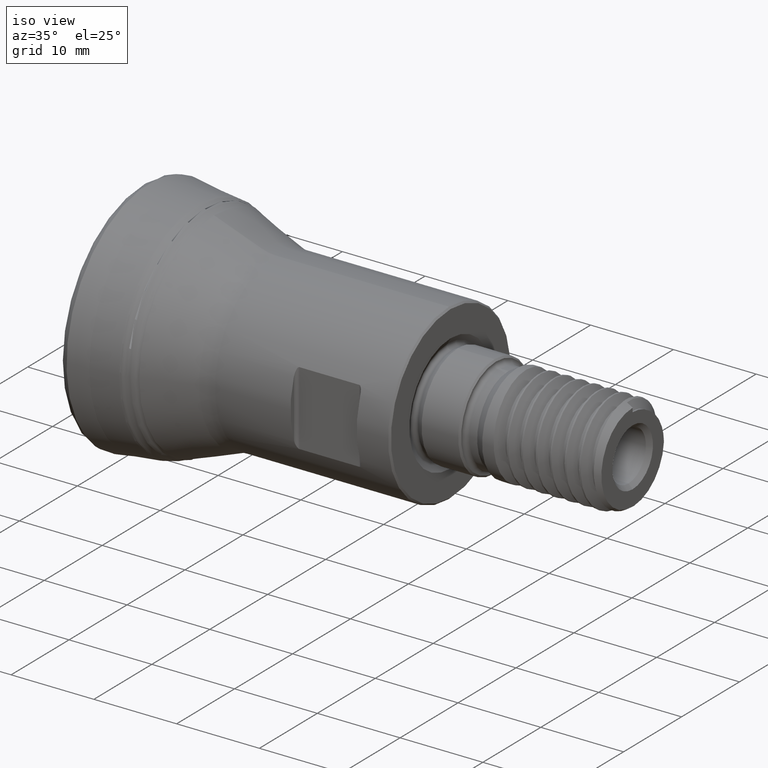
[diagram: clean part render]
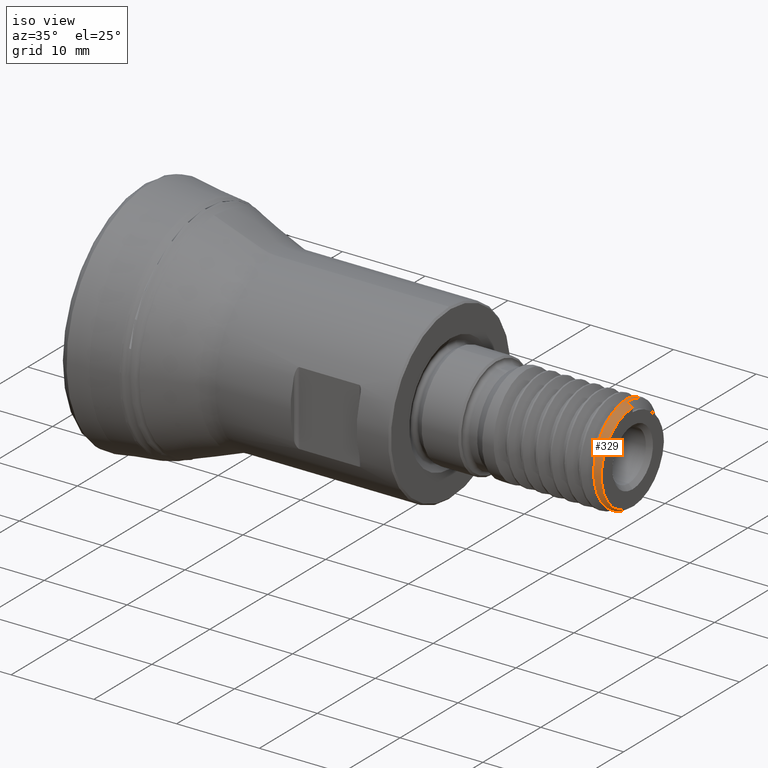
[diagram: same view with one face highlighted and labeled with its STEP entity id]
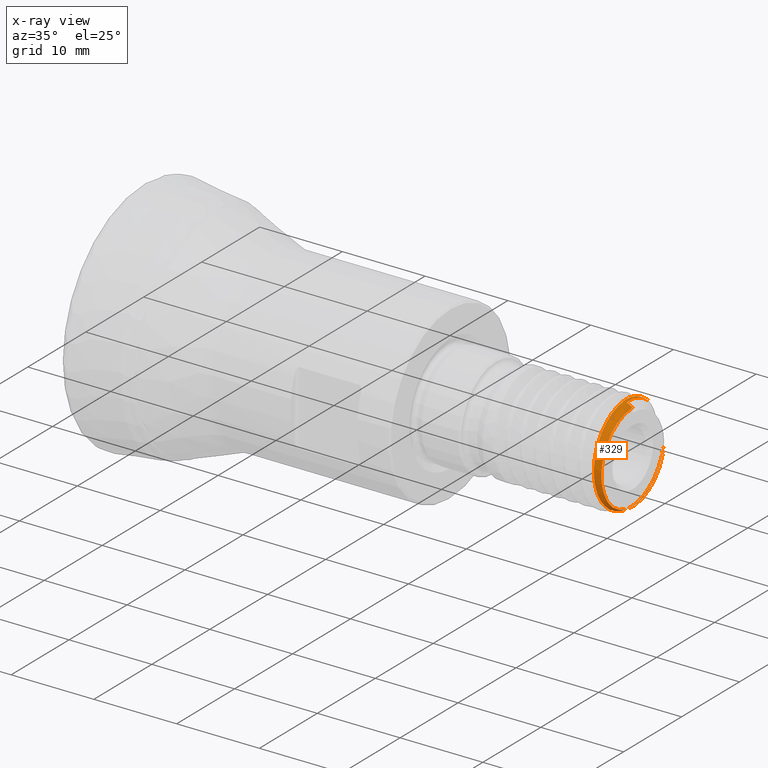
[diagram: x-ray of the same camera — body ghosted, the highlighted face saturated]
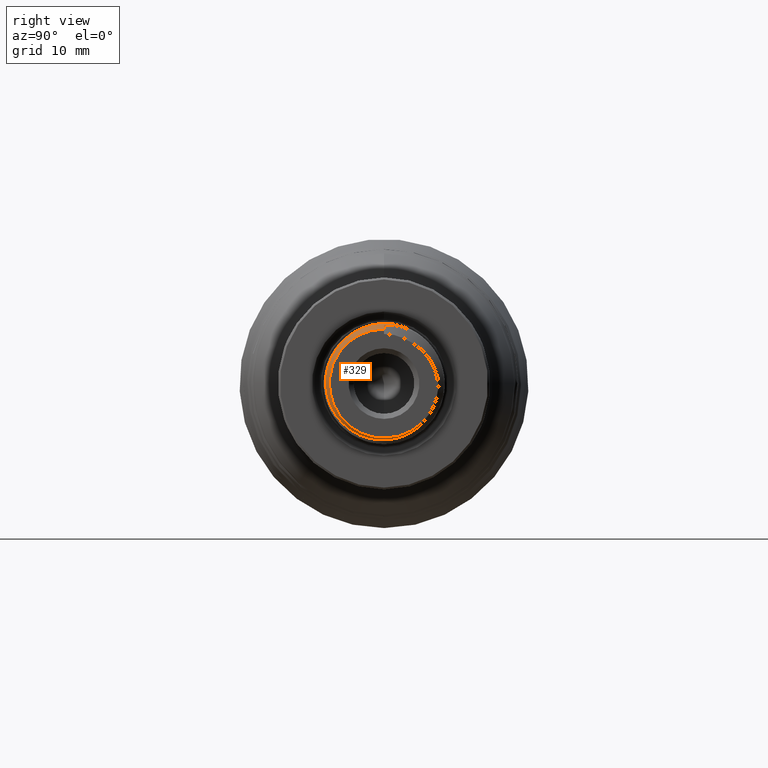
[diagram: same view with one face highlighted and labeled with its STEP entity id]
A machine part, iso view. The second image highlights one B-rep face of the part: STEP entity #329.
The next image is the same camera in x-ray: the body ghosted, the highlighted face saturated — about 0% of this face is hidden behind the body in this view.
A second angle (right view) of the same face is appended — the face is thin or edge-on in the first view.
In plain terms, the highlighted conical surface has half-angle 30 deg.
Its self-contained STEP definition (entity closure, byte-faithful):
#171=FACE_OUTER_BOUND('',#537,.T.);
#219=LINE('',#1983,#241);
#241=VECTOR('',#1282,1.);
#268=B_SPLINE_CURVE_WITH_KNOTS('',3,(#1967,#1968,#1969,#1970,#1971,#1972,
#1973,#1974,#1975,#1976,#1977,#1978,#1979,#1980,#1981,#1982),
 .UNSPECIFIED.,.F.,.F.,(4,2,2,2,2,2,2,4),(0.,0.125,0.25,0.375,0.5,0.625,
0.75,1.),.UNSPECIFIED.);
#269=B_SPLINE_CURVE_WITH_KNOTS('',3,(#1985,#1986,#1987,#1988),
 .UNSPECIFIED.,.F.,.F.,(4,4),(0.,1.),.UNSPECIFIED.);
#308=CONICAL_SURFACE('',#1129,5.983,30.);
#329=ADVANCED_FACE('',(#171),#308,.T.);
#537=EDGE_LOOP('',(#691,#692,#693,#694,#695));
#691=ORIENTED_EDGE('',*,*,#969,.F.);
#692=ORIENTED_EDGE('',*,*,#963,.F.);
#693=ORIENTED_EDGE('',*,*,#970,.F.);
#694=ORIENTED_EDGE('',*,*,#971,.F.);
#695=ORIENTED_EDGE('',*,*,#960,.F.);
#873=VERTEX_POINT('',#1812);
#874=VERTEX_POINT('',#1814);
#875=VERTEX_POINT('',#1947);
#877=VERTEX_POINT('',#1950);
#883=VERTEX_POINT('',#1984);
#960=EDGE_CURVE('',#873,#874,#1044,.T.);
#963=EDGE_CURVE('',#875,#877,#1045,.T.);
#969=EDGE_CURVE('',#877,#873,#268,.T.);
#970=EDGE_CURVE('',#883,#875,#219,.T.);
#971=EDGE_CURVE('',#874,#883,#269,.T.);
#1044=CIRCLE('',#1119,5.983);
#1045=CIRCLE('',#1121,5.40564973081037);
#1119=AXIS2_PLACEMENT_3D('',#1813,#1261,#1262);
#1121=AXIS2_PLACEMENT_3D('',#1949,#1266,#1267);
#1129=AXIS2_PLACEMENT_3D('',#1989,#1283,#1284);
#1261=DIRECTION('',(-1.,0.,0.));
#1262=DIRECTION('',(0.,0.,-1.));
#1266=DIRECTION('',(1.,0.,0.));
#1267=DIRECTION('',(0.,0.,-1.));
#1282=DIRECTION('',(0.866025403784439,0.,-0.499999999999999));
#1283=DIRECTION('',(-1.,0.,0.));
#1284=DIRECTION('',(7.13714880025291E-17,0.,1.));
#1812=CARTESIAN_POINT('',(59.1,0.850381004404823,5.92225811218555));
#1813=CARTESIAN_POINT('',(59.1,0.,0.));
#1814=CARTESIAN_POINT('',(59.1,4.10274933737449,4.35473729112024));
#1947=CARTESIAN_POINT('',(60.1,0.,5.40564973081037));
#1949=CARTESIAN_POINT('',(60.1,0.,0.));
#1950=CARTESIAN_POINT('',(60.1,5.3933927553993,-0.363818083960446));
#1967=CARTESIAN_POINT('',(60.1,5.3933927553993,-0.363818083960446));
#1968=CARTESIAN_POINT('',(60.0559287908216,5.34159717079954,-1.50971526731083));
#1969=CARTESIAN_POINT('',(60.0130357141777,4.9263459087055,-2.60913471941676));
#1970=CARTESIAN_POINT('',(59.9252880910822,3.50134752057971,-4.40140884607394));
#1971=CARTESIAN_POINT('',(59.882822342715,2.5187006496466,-5.0537458892237));
#1972=CARTESIAN_POINT('',(59.7977208367471,0.334361329522692,-5.6849216487423));
#1973=CARTESIAN_POINT('',(59.7550716266868,-0.857107455356296,-5.65324728385256));
#1974=CARTESIAN_POINT('',(59.6707083725327,-2.99971617746284,-4.92380953742219));
#1975=CARTESIAN_POINT('',(59.6286443911641,-3.96627093260635,-4.21714858253071));
#1976=CARTESIAN_POINT('',(59.5460149828311,-5.31805650762049,-2.40373218347717));
#1977=CARTESIAN_POINT('',(59.5043605016602,-5.71864353134024,-1.28240561491486));
#1978=CARTESIAN_POINT('',(59.4218799943858,-5.82429178681915,0.987384888949042));
#1979=CARTESIAN_POINT('',(59.3816329403769,-5.53760833387176,2.12556564746645));
#1980=CARTESIAN_POINT('',(59.2593557198463,-3.77510411345407,5.06722593267062));
#1981=CARTESIAN_POINT('',(59.1796682016658,-1.42477322842844,6.20248080832111));
#1982=CARTESIAN_POINT('',(59.0999999999999,0.850381004404824,5.92225811218557));
#1983=CARTESIAN_POINT('',(69.4628599816846,0.,0.));
#1984=CARTESIAN_POINT('',(59.4157056144029,0.,5.8007272785398));
#1985=CARTESIAN_POINT('',(59.1,4.10274933737449,4.35473729112024));
#1986=CARTESIAN_POINT('',(59.2041412487137,2.9719077869908,5.33753496848951));
#1987=CARTESIAN_POINT('',(59.3078744429684,1.49719142620324,5.86298363439453));
#1988=CARTESIAN_POINT('',(59.4157056144029,0.,5.80072727853979));
#1989=CARTESIAN_POINT('',(59.1,0.,0.));